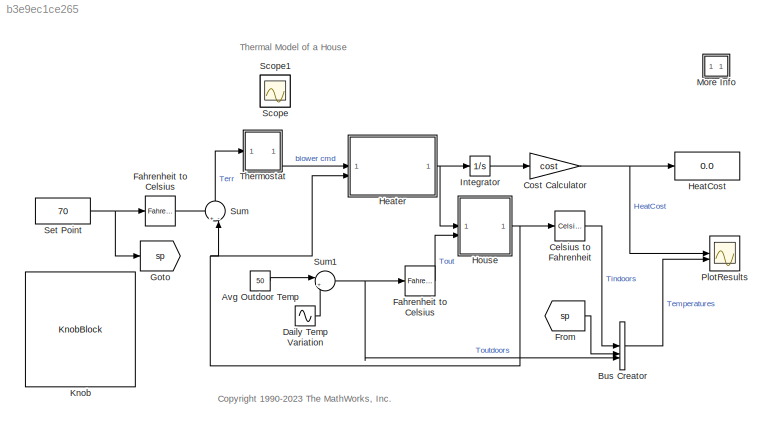
MODEL slx_b3e9ec1ce265
KIND model
CONFIG AbsTol = 1e-6
CONFIG EnableMultiTasking = off
CONFIG FixedStep = 1
CONFIG MaxStep = auto
CONFIG MinStep = auto
CONFIG RelTol = 1e-3
CONFIG SampleTimeConstraint = Unconstrained
CONFIG SolverName = ode45
CONFIG StartTime = 0.0
CONFIG StopTime = 172800
WORKSPACE source: MATLAB code (in-file)
WORKSPACE code: sldemo_househeat_data
BLOCK [Constant] Avg Outdoor Temp
  Value = 50
BLOCK [BusCreator] Bus Creator
  DisplayOption = bar
  InheritFromInputs = on
  Inputs = 3
BLOCK [Reference] Celsius to Fahrenheit  REF=simulink_extras/Transformations/Celsius to
Fahrenheit
  SourceBlock = simulink_extras/Transformations/Celsius to\nFahrenheit
  SourceType = CelsiusToFahrenheit
BLOCK [Gain] Cost Calculator
  Gain = cost
  OutDataTypeStr = Inherit: Same as input
  ParamDataTypeStr = Inherit: Same as input
  SaturateOnIntegerOverflow = on
BLOCK [Sin] Daily Temp Variation
  Amplitude = 15
  Frequency = (2*pi)/(24*3600)
  SampleTime = 0
BLOCK [Reference] Fahrenheit to Celsius  REF=simulink_extras/Transformations/Fahrenheit
to Celsius
  SourceBlock = simulink_extras/Transformations/Fahrenheit\nto Celsius
  SourceType = FahrenheitToCelsius
BLOCK [Reference] Fahrenheit to Celsius   REF=simulink_extras/Transformations/Fahrenheit
to Celsius
  NameLocation = top
  SourceBlock = simulink_extras/Transformations/Fahrenheit\nto Celsius
  SourceType = FahrenheitToCelsius
BLOCK [From] From
  GotoTag = sp
  TagVisibility = global
BLOCK [Goto] Goto
  GotoTag = sp
  TagVisibility = global
BLOCK [Display] HeatCost
  Decimation = 1
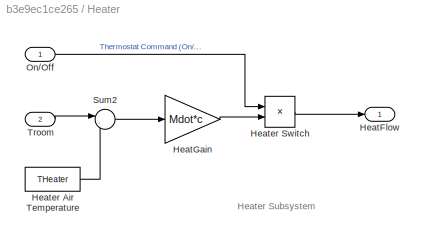
BLOCK [SubSystem] Heater
BLOCK [Outport] Heater/HeatFlow
  VectorParamsAs1DForOutWhenUnconnected = off
BLOCK [Gain] Heater/HeatGain
  Gain = Mdot*c
BLOCK [Constant] Heater/Heater Air Temperature
  Value = THeater
BLOCK [Product] Heater/Heater Switch
  RndMeth = Zero
BLOCK [Inport] Heater/On//Off
BLOCK [Sum] Heater/Sum2
  Inputs = |-+
BLOCK [Inport] Heater/Troom
  Port = 2
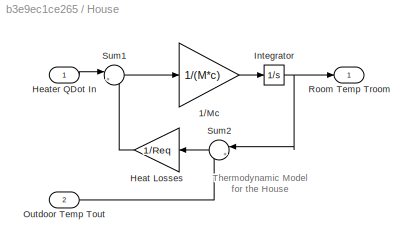
BLOCK [SubSystem] House
BLOCK [Gain] House/1//Mc
  Gain = 1/(M*c)
  OutDataTypeStr = Inherit: Same as input
  ParamDataTypeStr = Inherit: Same as input
  SaturateOnIntegerOverflow = on
BLOCK [Gain] House/Heat Losses
  Gain = 1/Req
  OutDataTypeStr = Inherit: Same as input
  ParamDataTypeStr = Inherit: Same as input
  SaturateOnIntegerOverflow = on
BLOCK [Inport] House/Heater QDot In
BLOCK [Integrator] House/Integrator
  InitialCondition = TinIC
BLOCK [Inport] House/Outdoor Temp Tout
  Port = 2
BLOCK [Outport] House/Room Temp Troom
  InitialOutput = 0
  VectorParamsAs1DForOutWhenUnconnected = off
BLOCK [Sum] House/Sum1
  InputSameDT = on
  Inputs = |+-
  OutDataTypeStr = Inherit: Same as first input
  SaturateOnIntegerOverflow = on
BLOCK [Sum] House/Sum2
  InputSameDT = on
  Inputs = |+-
  OutDataTypeStr = Inherit: Same as first input
  SaturateOnIntegerOverflow = on
BLOCK [Integrator] Integrator
BLOCK [KnobBlock] Knob
  ScaleMin = 60
BLOCK [SubSystem] More Info
  OpenFcn = showExample('simulink_general/sldemo_househeatExample')
BLOCK [Scope] PlotResults
  Floating = off
  NumInputPorts = 2
  ScopeSpecificationString = Simulink.scopes.TimeScopeBlockCfg('CurrentConfiguration', extmgr.ConfigurationSet(extmgr.Configuration('Core','General UI',true),extmgr.Configuration('Core','Source UI',true),extmgr.Configuration('Sources','WiredSimulink',true,'DataLoggingVariableName','ScopeData1'),extmgr.Configuration('Visuals','Time Domain',true,'SerializedDisplays',{struct('MinYLimReal','-3','MaxYLimReal','37','YLabelReal','He...<+2376ch>
BLOCK [Scope] Scope
  Floating = off
  IOType = viewer
  NumInputPorts = 1
  ScopeSpecificationString = Simulink.scopes.TimeScopeBlockCfg('CurrentConfiguration', extmgr.ConfigurationSet(extmgr.Configuration('Core','General UI',true),extmgr.Configuration('Core','Source UI',true),extmgr.Configuration('Sources','WiredSimulink',true,'DataLoggingVariableName','ScopeData2'),extmgr.Configuration('Visuals','Time Domain',true,'SerializedDisplays',{struct('MinYLimReal','-3.67806','MaxYLimReal','33.10258','YLa...<+1410ch>
BLOCK [Scope] Scope1
  Floating = off
  IOType = viewer
  NumInputPorts = 1
  ScopeSpecificationString = Simulink.scopes.TimeScopeBlockCfg('CurrentConfiguration', extmgr.ConfigurationSet(extmgr.Configuration('Core','General UI',true),extmgr.Configuration('Core','Source UI',true),extmgr.Configuration('Sources','WiredSimulink',true,'DataLoggingVariableName','ScopeData1'),extmgr.Configuration('Visuals','Time Domain',true,'SerializedDisplays',{struct('MinYLimReal','-0.125','MaxYLimReal','1.125','YLabelRe...<+1347ch>
BLOCK [Constant] Set Point
  NameLocation = top
  Value = 70
BLOCK [Sum] Sum
  InputSameDT = on
  Inputs = +-|
  NameLocation = right
  OutDataTypeStr = Inherit: Same as first input
  SaturateOnIntegerOverflow = on
BLOCK [Sum] Sum1
  InputSameDT = on
  Inputs = |++
  OutDataTypeStr = Inherit: Same as first input
  SaturateOnIntegerOverflow = on
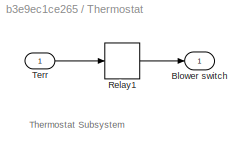
BLOCK [SubSystem] Thermostat
BLOCK [Outport] Thermostat/Blower switch
  InitialOutput = 0
  VectorParamsAs1DForOutWhenUnconnected = off
BLOCK [Relay] Thermostat/Relay1
  OffSwitchValue = -5*(5/9)
  OnSwitchValue = 5*(5/9)
BLOCK [Inport] Thermostat/Terr
ANNOTATION (root): <copyright redacted>
ANNOTATION (root): Thermal Model of a House
ANNOTATION Heater: Heater Subsystem
ANNOTATION House: Thermodynamic Model for the House
ANNOTATION Thermostat: Thermostat Subsystem
LINE Avg Outdoor Temp:1 -> Sum1:1
LINE Bus Creator:1 -> PlotResults:2
LINE Celsius to Fahrenheit:1 -> Bus Creator:1
NET Cost Calculator:1 -> HeatCost:1, PlotResults:1
LINE Daily Temp Variation:1 -> Sum1:2
LINE Fahrenheit to Celsius :1 -> Sum:1
LINE Fahrenheit to Celsius:1 -> House:2
LINE From:1 -> Bus Creator:2
LINE Heater/HeatGain:1 -> Heater/Heater Switch:2
LINE Heater/Heater Air Temperature:1 -> Heater/Sum2:2
LINE Heater/Heater Switch:1 -> Heater/HeatFlow:1
LINE Heater/On//Off:1 -> Heater/Heater Switch:1
LINE Heater/Sum2:1 -> Heater/HeatGain:1
LINE Heater/Troom:1 -> Heater/Sum2:1
NET Heater:1 -> House:1, Integrator:1
LINE House/1//Mc:1 -> House/Integrator:1
LINE House/Heat Losses:1 -> House/Sum1:2
LINE House/Heater QDot In:1 -> House/Sum1:1
NET House/Integrator:1 -> House/Room Temp Troom:1, House/Sum2:1
LINE House/Outdoor Temp Tout:1 -> House/Sum2:2
LINE House/Sum1:1 -> House/1//Mc:1
LINE House/Sum2:1 -> House/Heat Losses:1
NET House:1 -> Celsius to Fahrenheit:1, Heater:2, Sum:2
LINE Integrator:1 -> Cost Calculator:1
NET Set Point:1 -> Fahrenheit to Celsius :1, Goto:1
NET Sum1:1 -> Bus Creator:3, Fahrenheit to Celsius:1
LINE Sum:1 -> Thermostat:1
LINE Thermostat/Relay1:1 -> Thermostat/Blower switch:1
LINE Thermostat/Terr:1 -> Thermostat/Relay1:1
LINE Thermostat:1 -> Heater:1
note: NET lines group one-source signal fan-out (src -> all destinations, sorted); 1:1 wires keep LINE
